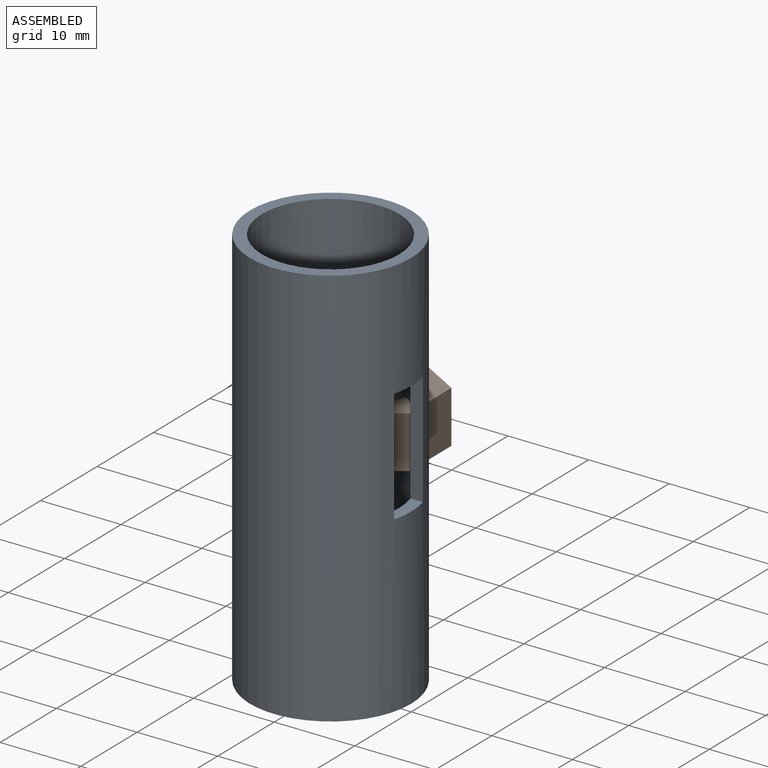
[diagram: assembled view]
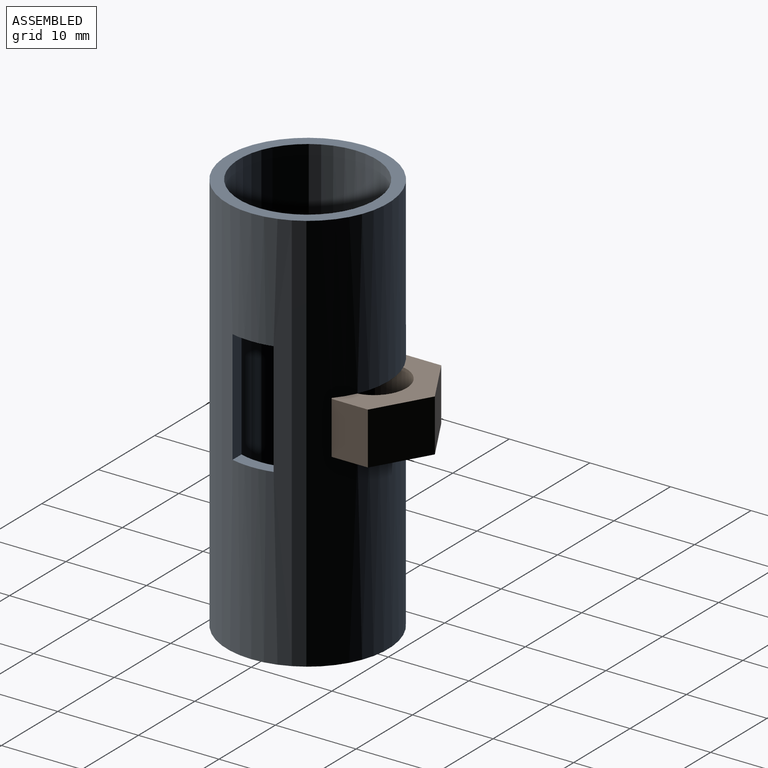
[diagram: assembled view, second angle]
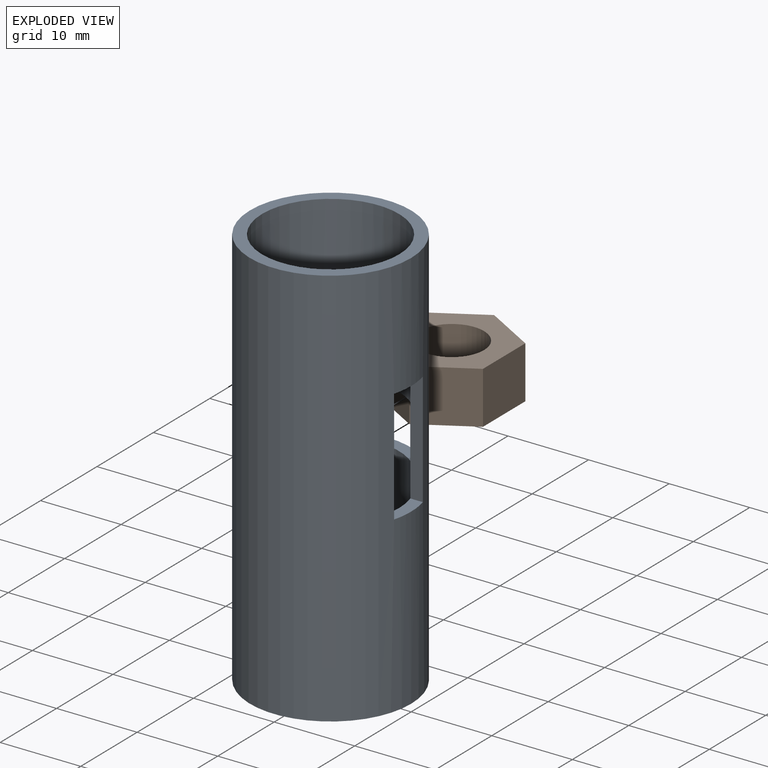
[diagram: exploded view]
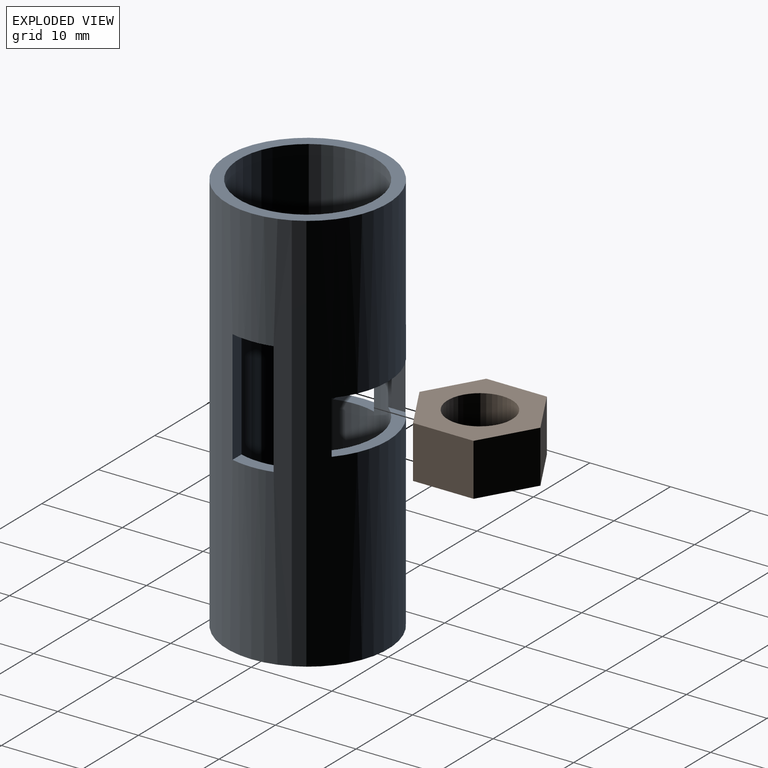
[diagram: exploded view, second angle]
ASSEMBLY  parts=2 mates=2
PART A: 16 faces, bbox 20x20x50 mm
  f0: cylinder r=8.5mm len=50mm, axis (0,0,-1), area 2425.7mm2, adj f2,f3,f4,f5,f6,f7,f8,f9
  f1: cylinder r=10mm len=50mm, axis (0,0,-1), area 2902mm2, adj f2,f3,f4,f5,f6,f7,f8,f9
  f2: plane 20x20mm, normal (0,0,1), area 87.2mm2, adj f0,f1
  f3: plane 20x20mm, normal (0,0,-1), area 87.2mm2, adj f0,f1
  f4: plane 6.6x2.14mm, normal (-1,0,0), area 14.1mm2, adj f0,f1,f5,f7
  f5: plane 13.1x4.58mm, normal (0,0,-1), area 21.9mm2, adj f0,f1,f4,f6
  f6: plane 6.6x2.14mm, normal (1,0,0), area 14.1mm2, adj f0,f1,f5,f7
  f7: plane 13.1x4.58mm, normal (0,0,1), area 21.9mm2, adj f0,f1,f4,f6
  f8: plane 14.09x1.56mm, normal (0,1,0), area 22mm2, adj f0,f1,f9,f11
  f9: plane 5.1x1.89mm, normal (0,0,-1), area 7.8mm2, adj f0,f1,f8,f10
  f10: plane 14.09x1.56mm, normal (0,-1,0), area 22mm2, adj f0,f1,f9,f11
  f11: plane 5.1x1.89mm, normal (0,0,1), area 7.8mm2, adj f0,f1,f8,f10
  f12: plane 5.1x1.89mm, normal (0,0,1), area 7.8mm2, adj f0,f1,f13,f15
  f13: plane 14.09x1.56mm, normal (0,-1,0), area 22mm2, adj f0,f1,f12,f14
  f14: plane 5.1x1.89mm, normal (0,0,-1), area 7.8mm2, adj f0,f1,f13,f15
  f15: plane 14.09x1.56mm, normal (0,1,0), area 22mm2, adj f0,f1,f12,f14
PART B: 9 faces, bbox 13x15x6.5 mm
  f0: plane 7.51x6.5mm, normal (-1,0,0), area 48.8mm2, adj f1,f6,f7,f8
  f1: plane 6.5x6.5mm, normal (-0.5,-0.87,0), area 48.8mm2, adj f0,f2,f7,f8
  f2: plane 6.5x6.5mm, normal (0.5,-0.87,0), area 48.8mm2, adj f1,f3,f7,f8
  f3: plane 7.51x6.5mm, normal (1,0,0), area 48.8mm2, adj f2,f4,f7,f8
  f4: plane 6.5x6.5mm, normal (0.5,0.87,0), area 48.8mm2, adj f3,f6,f7,f8
  f5: cylinder r=4mm len=8mm, axis (0,0,-1), area 163.4mm2, adj f7,f8
  f6: plane 6.5x6.5mm, normal (-0.5,0.87,0), area 48.8mm2, adj f0,f4,f7,f8
  f7: plane 15.01x13mm, normal (0,0,1), area 96.1mm2, adj f0,f1,f2,f3,f4,f5,f6
  f8: plane 15.01x13mm, normal (0,0,-1), area 96.1mm2, adj f0,f1,f2,f3,f4,f5,f6
PLACE A at identity fixed
PLACE B t=(0.05,8.31,-1.6)mm
MATE planar B.f5 <-> A.f7  axis (0,0,-1) through (0.05,8.31,-1.6)mm
MATE planar A.f4 <-> B.f3  axis (-1,0,0) through (6.55,6.49,1.7)mm
